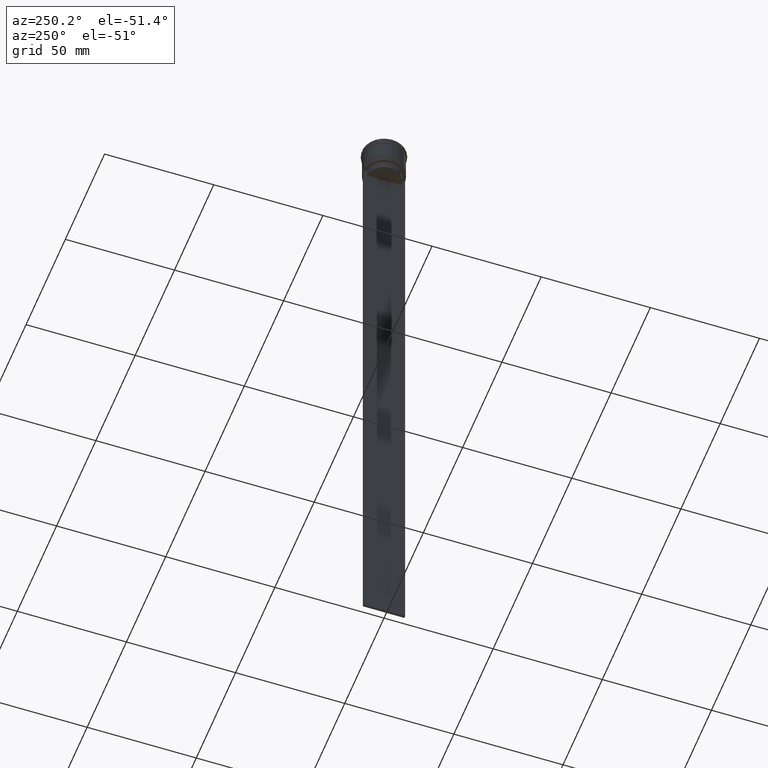
[diagram: clean part render]
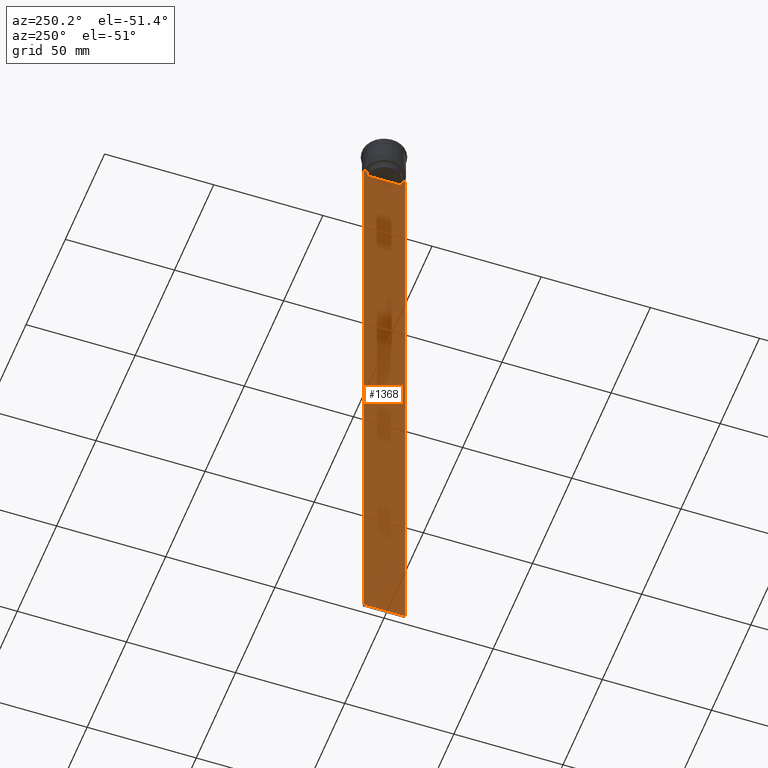
[diagram: same view with one face highlighted and labeled with its STEP entity id]
A machine part, auxiliary view. The second image highlights one B-rep face of the part: STEP entity #1368.
In plain terms, the highlighted planar face has unit normal (-1, 0, 0).
Its self-contained STEP definition (entity closure, byte-faithful):
#6 = PLANE ( 'NONE',  #1808 ) ;
#19 = DIRECTION ( 'NONE',  ( 0.000000000000000000, -1.000000000000000000, 0.000000000000000000 ) ) ;
#67 = VERTEX_POINT ( 'NONE', #1157 ) ;
#155 = ORIENTED_EDGE ( 'NONE', *, *, #1329, .F. ) ;
#198 = DIRECTION ( 'NONE',  ( 0.000000000000000000, -1.000000000000000000, 0.000000000000000000 ) ) ;
#199 = CARTESIAN_POINT ( 'NONE',  ( -0.5000000000000000000, -7.884161337770803080, -14.50000000000000000 ) ) ;
#215 = VECTOR ( 'NONE', #2027, 1000.000000000000000 ) ;
#221 = CARTESIAN_POINT ( 'NONE',  ( -0.5000000000000000000, -8.385105843100605583, -14.00000000000000178 ) ) ;
#225 = CARTESIAN_POINT ( 'NONE',  ( -0.5000000000000000000, 8.051152811434374001, -14.33334332653219079 ) ) ;
#234 = EDGE_CURVE ( 'NONE', #697, #613, #1813, .T. ) ;
#238 = B_SPLINE_CURVE_WITH_KNOTS ( 'NONE', 3,
 ( #817, #449, #2289, #2053 ),
 .UNSPECIFIED., .F., .F.,
 ( 4, 4 ),
 ( 0.03673372442973153046, 0.03744389749832059688 ),
 .UNSPECIFIED. ) ;
#300 = CARTESIAN_POINT ( 'NONE',  ( -0.5000000000000000000, 9.499999999999994671, -14.00000000000000178 ) ) ;
#403 = DIRECTION ( 'NONE',  ( 0.000000000000000000, 0.000000000000000000, 1.000000000000000000 ) ) ;
#416 = ORIENTED_EDGE ( 'NONE', *, *, #691, .F. ) ;
#449 = CARTESIAN_POINT ( 'NONE',  ( -0.5000000000000000000, -8.051152795888546265, -14.33334334204685057 ) ) ;
#469 = VECTOR ( 'NONE', #742, 1000.000000000000000 ) ;
#588 = FACE_OUTER_BOUND ( 'NONE', #2311, .T. ) ;
#596 = LINE ( 'NONE', #2046, #1984 ) ;
#613 = VERTEX_POINT ( 'NONE', #761 ) ;
#621 = DIRECTION ( 'NONE',  ( 0.000000000000000000, 0.000000000000000000, -1.000000000000000000 ) ) ;
#638 = VECTOR ( 'NONE', #1985, 1000.000000000000000 ) ;
#651 = EDGE_CURVE ( 'NONE', #1906, #1956, #238, .T. ) ;
#691 = EDGE_CURVE ( 'NONE', #1953, #1094, #785, .T. ) ;
#697 = VERTEX_POINT ( 'NONE', #1457 ) ;
#742 = DIRECTION ( 'NONE',  ( 0.000000000000000000, 0.000000000000000000, -1.000000000000000000 ) ) ;
#749 = CARTESIAN_POINT ( 'NONE',  ( -0.5000000000000000000, 7.884161337770803080, -14.50000000000000000 ) ) ;
#761 = CARTESIAN_POINT ( 'NONE',  ( -0.5000000000000000000, 8.385105843100605583, -14.00000000000000178 ) ) ;
#785 = LINE ( 'NONE', #2671, #2338 ) ;
#817 = CARTESIAN_POINT ( 'NONE',  ( -0.5000000000000000000, -7.884161337770803080, -14.50000000000000000 ) ) ;
#820 = CARTESIAN_POINT ( 'NONE',  ( -0.5000000000000000000, -9.500000000000001776, -14.00000000000000178 ) ) ;
#826 = DIRECTION ( 'NONE',  ( -1.000000000000000000, 0.000000000000000000, 0.000000000000000000 ) ) ;
#827 = VERTEX_POINT ( 'NONE', #300 ) ;
#874 = VERTEX_POINT ( 'NONE', #1888 ) ;
#909 = LINE ( 'NONE', #1535, #215 ) ;
#932 = B_SPLINE_CURVE_WITH_KNOTS ( 'NONE', 3,
 ( #1473, #1805, #225, #1485 ),
 .UNSPECIFIED., .F., .F.,
 ( 4, 4 ),
 ( 0.01426761478740281447, 0.01497538974438914448 ),
 .UNSPECIFIED. ) ;
#935 = LINE ( 'NONE', #1591, #469 ) ;
#1002 = EDGE_CURVE ( 'NONE', #1262, #1845, #596, .T. ) ;
#1021 = VERTEX_POINT ( 'NONE', #749 ) ;
#1064 = LINE ( 'NONE', #1928, #1719 ) ;
#1094 = VERTEX_POINT ( 'NONE', #820 ) ;
#1131 = EDGE_CURVE ( 'NONE', #1021, #1262, #2494, .T. ) ;
#1157 = CARTESIAN_POINT ( 'NONE',  ( -0.5000000000000000000, 9.499999999999998224, -314.0000000000000000 ) ) ;
#1262 = VERTEX_POINT ( 'NONE', #1952 ) ;
#1302 = ORIENTED_EDGE ( 'NONE', *, *, #1131, .F. ) ;
#1309 = EDGE_CURVE ( 'NONE', #827, #697, #1544, .T. ) ;
#1310 = DIRECTION ( 'NONE',  ( 0.000000000000000000, -1.000000000000000000, 0.000000000000000000 ) ) ;
#1329 = EDGE_CURVE ( 'NONE', #1845, #1906, #909, .T. ) ;
#1368 = ADVANCED_FACE ( 'NONE', ( #588 ), #6, .T. ) ;
#1373 = LINE ( 'NONE', #2580, #638 ) ;
#1399 = ORIENTED_EDGE ( 'NONE', *, *, #2420, .F. ) ;
#1430 = DIRECTION ( 'NONE',  ( 0.000000000000000000, -1.000000000000000000, 0.000000000000000000 ) ) ;
#1457 = CARTESIAN_POINT ( 'NONE',  ( -0.5000000000000000000, 9.386692708297204035, -14.00000000000000178 ) ) ;
#1468 = VECTOR ( 'NONE', #621, 1000.000000000000000 ) ;
#1473 = CARTESIAN_POINT ( 'NONE',  ( -0.5000000000000000000, 8.385105843100605583, -14.00000000000000178 ) ) ;
#1485 = CARTESIAN_POINT ( 'NONE',  ( -0.5000000000000000000, 7.884161337770803080, -14.50000000000000000 ) ) ;
#1486 = ORIENTED_EDGE ( 'NONE', *, *, #1002, .F. ) ;
#1489 = EDGE_CURVE ( 'NONE', #1956, #1953, #1064, .T. ) ;
#1535 = CARTESIAN_POINT ( 'NONE',  ( -0.5000000000000000000, -7.884161337770803080, 0.000000000000000000 ) ) ;
#1544 = LINE ( 'NONE', #2605, #1795 ) ;
#1553 = ORIENTED_EDGE ( 'NONE', *, *, #1309, .F. ) ;
#1591 = CARTESIAN_POINT ( 'NONE',  ( -0.5000000000000000000, 9.499999999999998224, 5.026297590440445440 ) ) ;
#1631 = EDGE_CURVE ( 'NONE', #1094, #874, #1373, .T. ) ;
#1633 = CARTESIAN_POINT ( 'NONE',  ( -0.5000000000000000000, -9.500000000000001776, 5.026297590440445440 ) ) ;
#1638 = DIRECTION ( 'NONE',  ( 0.000000000000000000, 1.000000000000000000, 0.000000000000000000 ) ) ;
#1659 = EDGE_CURVE ( 'NONE', #827, #67, #935, .T. ) ;
#1719 = VECTOR ( 'NONE', #19, 1000.000000000000000 ) ;
#1795 = VECTOR ( 'NONE', #1310, 1000.000000000000000 ) ;
#1805 = CARTESIAN_POINT ( 'NONE',  ( -0.5000000000000000000, 8.218133718559618828, -14.16667606394327983 ) ) ;
#1808 = AXIS2_PLACEMENT_3D ( 'NONE', #1633, #826, #403 ) ;
#1813 = LINE ( 'NONE', #2645, #2613 ) ;
#1845 = VERTEX_POINT ( 'NONE', #2268 ) ;
#1872 = ORIENTED_EDGE ( 'NONE', *, *, #234, .F. ) ;
#1877 = LINE ( 'NONE', #2076, #2287 ) ;
#1888 = CARTESIAN_POINT ( 'NONE',  ( -0.5000000000000000000, -9.500000000000001776, -314.0000000000000000 ) ) ;
#1906 = VERTEX_POINT ( 'NONE', #199 ) ;
#1928 = CARTESIAN_POINT ( 'NONE',  ( -0.5000000000000000000, -9.500000000000001776, -14.00000000000000178 ) ) ;
#1951 = EDGE_CURVE ( 'NONE', #874, #67, #1877, .T. ) ;
#1952 = CARTESIAN_POINT ( 'NONE',  ( -0.5000000000000000000, 7.884161337770803080, -17.00000000000000000 ) ) ;
#1953 = VERTEX_POINT ( 'NONE', #2261 ) ;
#1956 = VERTEX_POINT ( 'NONE', #221 ) ;
#1984 = VECTOR ( 'NONE', #2412, 1000.000000000000000 ) ;
#1985 = DIRECTION ( 'NONE',  ( 0.000000000000000000, 0.000000000000000000, -1.000000000000000000 ) ) ;
#2027 = DIRECTION ( 'NONE',  ( -0.000000000000000000, -0.000000000000000000, 1.000000000000000000 ) ) ;
#2046 = CARTESIAN_POINT ( 'NONE',  ( -0.5000000000000000000, 7.899999999999994138, -17.00000000000000000 ) ) ;
#2052 = ORIENTED_EDGE ( 'NONE', *, *, #1951, .F. ) ;
#2053 = CARTESIAN_POINT ( 'NONE',  ( -0.5000000000000000000, -8.385105843100605583, -14.00000000000000178 ) ) ;
#2076 = CARTESIAN_POINT ( 'NONE',  ( -0.5000000000000000000, -9.500000000000001776, -314.0000000000000000 ) ) ;
#2085 = ORIENTED_EDGE ( 'NONE', *, *, #651, .F. ) ;
#2179 = ORIENTED_EDGE ( 'NONE', *, *, #1489, .F. ) ;
#2261 = CARTESIAN_POINT ( 'NONE',  ( -0.5000000000000000000, -9.386692708297204035, -14.00000000000000178 ) ) ;
#2268 = CARTESIAN_POINT ( 'NONE',  ( -0.5000000000000000000, -7.884161337770803080, -17.00000000000000000 ) ) ;
#2287 = VECTOR ( 'NONE', #1638, 1000.000000000000000 ) ;
#2289 = CARTESIAN_POINT ( 'NONE',  ( -0.5000000000000000000, -8.218133703942523738, -14.16667607853445787 ) ) ;
#2311 = EDGE_LOOP ( 'NONE', ( #1399, #1872, #1553, #2556, #2052, #2586, #416, #2179, #2085, #155, #1486, #1302 ) ) ;
#2338 = VECTOR ( 'NONE', #198, 1000.000000000000000 ) ;
#2412 = DIRECTION ( 'NONE',  ( 0.000000000000000000, -1.000000000000000000, 0.000000000000000000 ) ) ;
#2420 = EDGE_CURVE ( 'NONE', #613, #1021, #932, .T. ) ;
#2469 = CARTESIAN_POINT ( 'NONE',  ( -0.5000000000000000000, 7.884161337770803080, 0.000000000000000000 ) ) ;
#2494 = LINE ( 'NONE', #2469, #1468 ) ;
#2556 = ORIENTED_EDGE ( 'NONE', *, *, #1659, .T. ) ;
#2580 = CARTESIAN_POINT ( 'NONE',  ( -0.5000000000000000000, -9.500000000000001776, 5.026297590440445440 ) ) ;
#2586 = ORIENTED_EDGE ( 'NONE', *, *, #1631, .F. ) ;
#2605 = CARTESIAN_POINT ( 'NONE',  ( -0.5000000000000000000, -9.500000000000001776, -14.00000000000000178 ) ) ;
#2613 = VECTOR ( 'NONE', #1430, 1000.000000000000000 ) ;
#2645 = CARTESIAN_POINT ( 'NONE',  ( -0.5000000000000000000, -9.500000000000001776, -14.00000000000000178 ) ) ;
#2671 = CARTESIAN_POINT ( 'NONE',  ( -0.5000000000000000000, -9.500000000000001776, -14.00000000000000178 ) ) ;